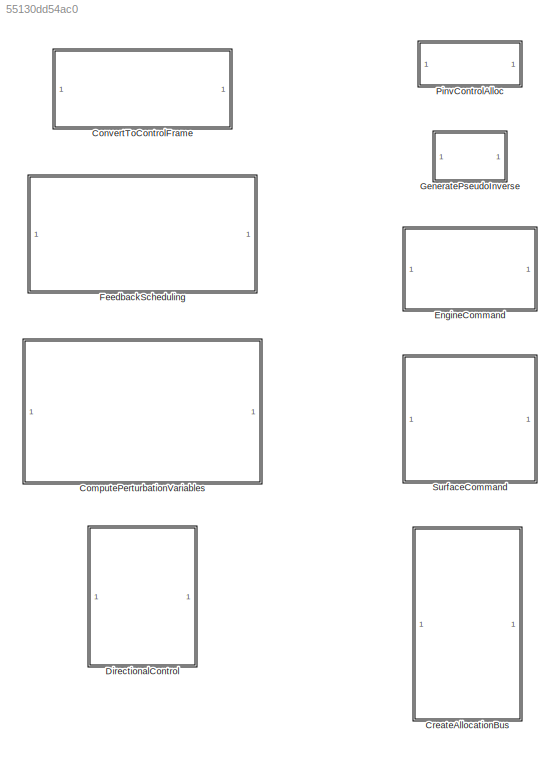
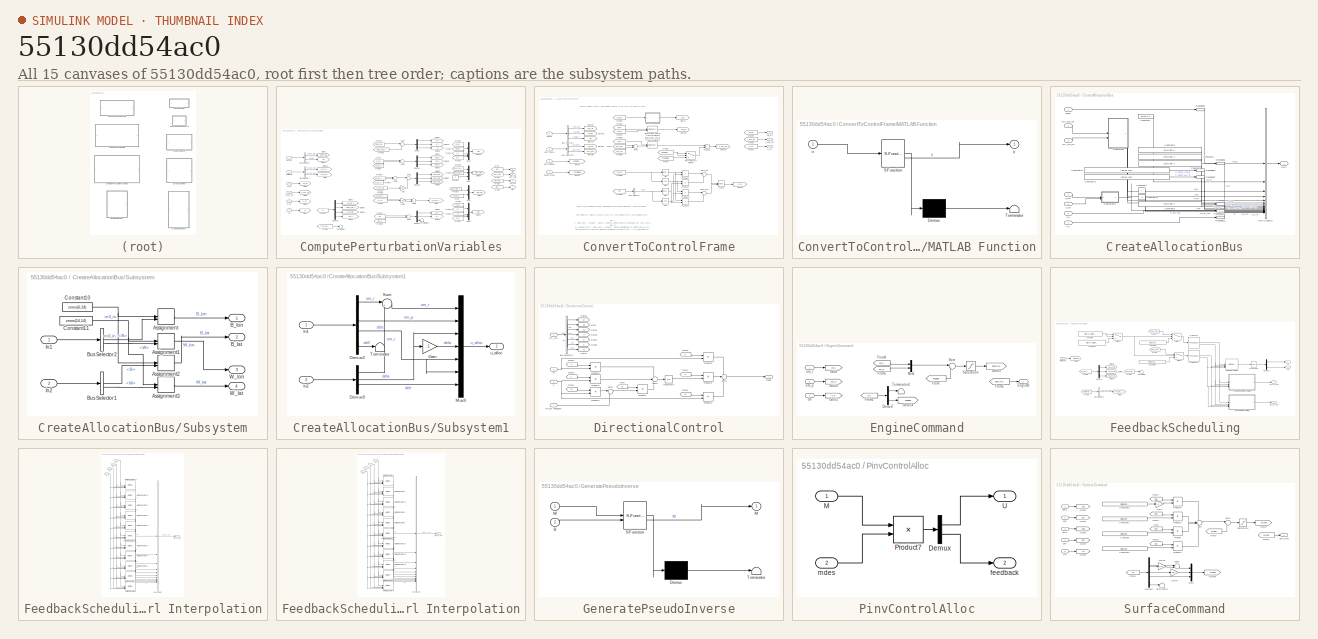
[diagram: thumbnail index - all 15 canvases of the model, root first then tree order]
MODEL slx_55130dd54ac0
KIND library
CONFIG AbsTol = auto
CONFIG EnableMultiTasking = off
CONFIG FixedStep = auto
CONFIG MaxStep = auto
CONFIG MinStep = auto
CONFIG RelTol = 1e-3
CONFIG SampleTimeConstraint = Unconstrained
CONFIG SolverName = VariableStepAuto
CONFIG StartTime = 0.0
CONFIG StopTime = 10.0
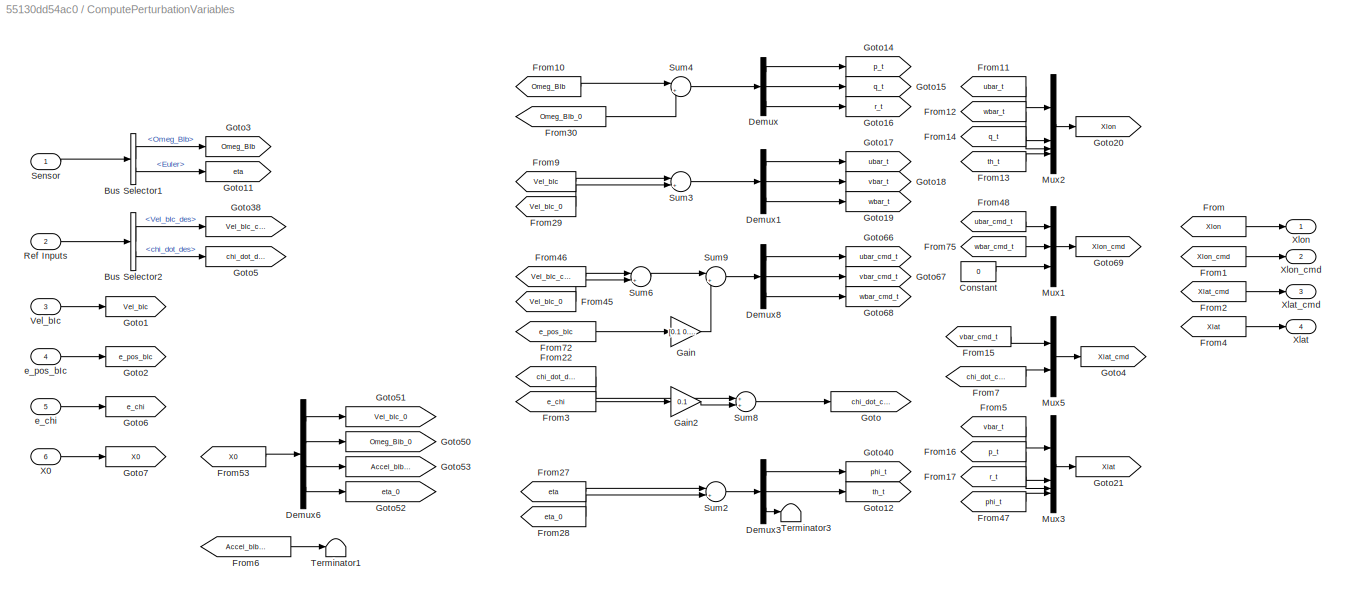
BLOCK [SubSystem] ComputePerturbationVariables
BLOCK [BusSelector] ComputePerturbationVariables/Bus Selector1
  OutputSignals = Omeg_BIb,Euler
BLOCK [BusSelector] ComputePerturbationVariables/Bus Selector2
  OutputSignals = Vel_bIc_des,chi_dot_des
BLOCK [Constant] ComputePerturbationVariables/Constant
  Value = 0
BLOCK [Demux] ComputePerturbationVariables/Demux
  Outputs = 3
BLOCK [Demux] ComputePerturbationVariables/Demux1
  Outputs = 3
BLOCK [Demux] ComputePerturbationVariables/Demux3
  Outputs = 3
BLOCK [Demux] ComputePerturbationVariables/Demux6
  Outputs = [3 3 3 3]
BLOCK [Demux] ComputePerturbationVariables/Demux8
  Outputs = 3
BLOCK [From] ComputePerturbationVariables/From
  GotoTag = Xlon
BLOCK [From] ComputePerturbationVariables/From1
  GotoTag = Xlon_cmd
BLOCK [From] ComputePerturbationVariables/From10
  GotoTag = Omeg_BIb
BLOCK [From] ComputePerturbationVariables/From11
  GotoTag = ubar_t
BLOCK [From] ComputePerturbationVariables/From12
  GotoTag = wbar_t
BLOCK [From] ComputePerturbationVariables/From13
  GotoTag = th_t
BLOCK [From] ComputePerturbationVariables/From14
  GotoTag = q_t
BLOCK [From] ComputePerturbationVariables/From15
  GotoTag = vbar_cmd_t
BLOCK [From] ComputePerturbationVariables/From16
  GotoTag = p_t
BLOCK [From] ComputePerturbationVariables/From17
  GotoTag = r_t
BLOCK [From] ComputePerturbationVariables/From2
  GotoTag = Xlat_cmd
BLOCK [From] ComputePerturbationVariables/From22
  GotoTag = chi_dot_des
BLOCK [From] ComputePerturbationVariables/From27
  GotoTag = eta
BLOCK [From] ComputePerturbationVariables/From28
  GotoTag = eta_0
BLOCK [From] ComputePerturbationVariables/From29
  GotoTag = Vel_bIc_0
BLOCK [From] ComputePerturbationVariables/From3
  GotoTag = e_chi
BLOCK [From] ComputePerturbationVariables/From30
  GotoTag = Omeg_BIb_0
BLOCK [From] ComputePerturbationVariables/From4
  GotoTag = Xlat
BLOCK [From] ComputePerturbationVariables/From45
  GotoTag = Vel_bIc_0
BLOCK [From] ComputePerturbationVariables/From46
  GotoTag = Vel_bIc_cmd
BLOCK [From] ComputePerturbationVariables/From47
  GotoTag = phi_t
BLOCK [From] ComputePerturbationVariables/From48
  GotoTag = ubar_cmd_t
BLOCK [From] ComputePerturbationVariables/From5
  GotoTag = vbar_t
BLOCK [From] ComputePerturbationVariables/From53
  GotoTag = X0
BLOCK [From] ComputePerturbationVariables/From6
  GotoTag = Accel_bIb_0
BLOCK [From] ComputePerturbationVariables/From7
  GotoTag = chi_dot_cmd
BLOCK [From] ComputePerturbationVariables/From72
  GotoTag = e_pos_bIc
BLOCK [From] ComputePerturbationVariables/From75
  GotoTag = wbar_cmd_t
BLOCK [From] ComputePerturbationVariables/From9
  GotoTag = Vel_bIc
BLOCK [Gain] ComputePerturbationVariables/Gain
  Gain = [0.1 0.1 0.1]'
BLOCK [Gain] ComputePerturbationVariables/Gain2
  Gain = 0.1
BLOCK [Goto] ComputePerturbationVariables/Goto
  GotoTag = chi_dot_cmd
BLOCK [Goto] ComputePerturbationVariables/Goto1
  GotoTag = Vel_bIc
BLOCK [Goto] ComputePerturbationVariables/Goto11
  GotoTag = eta
BLOCK [Goto] ComputePerturbationVariables/Goto12
  GotoTag = th_t
BLOCK [Goto] ComputePerturbationVariables/Goto14
  GotoTag = p_t
BLOCK [Goto] ComputePerturbationVariables/Goto15
  GotoTag = q_t
BLOCK [Goto] ComputePerturbationVariables/Goto16
  GotoTag = r_t
BLOCK [Goto] ComputePerturbationVariables/Goto17
  GotoTag = ubar_t
BLOCK [Goto] ComputePerturbationVariables/Goto18
  GotoTag = vbar_t
BLOCK [Goto] ComputePerturbationVariables/Goto19
  GotoTag = wbar_t
BLOCK [Goto] ComputePerturbationVariables/Goto2
  GotoTag = e_pos_bIc
BLOCK [Goto] ComputePerturbationVariables/Goto20
  GotoTag = Xlon
BLOCK [Goto] ComputePerturbationVariables/Goto21
  GotoTag = Xlat
BLOCK [Goto] ComputePerturbationVariables/Goto3
  GotoTag = Omeg_BIb
BLOCK [Goto] ComputePerturbationVariables/Goto38
  GotoTag = Vel_bIc_cmd
BLOCK [Goto] ComputePerturbationVariables/Goto4
  GotoTag = Xlat_cmd
BLOCK [Goto] ComputePerturbationVariables/Goto40
  GotoTag = phi_t
BLOCK [Goto] ComputePerturbationVariables/Goto5
  GotoTag = chi_dot_des
BLOCK [Goto] ComputePerturbationVariables/Goto50
  GotoTag = Omeg_BIb_0
BLOCK [Goto] ComputePerturbationVariables/Goto51
  GotoTag = Vel_bIc_0
BLOCK [Goto] ComputePerturbationVariables/Goto52
  GotoTag = eta_0
BLOCK [Goto] ComputePerturbationVariables/Goto53
  GotoTag = Accel_bIb_0
BLOCK [Goto] ComputePerturbationVariables/Goto6
  GotoTag = e_chi
BLOCK [Goto] ComputePerturbationVariables/Goto66
  GotoTag = ubar_cmd_t
BLOCK [Goto] ComputePerturbationVariables/Goto67
  GotoTag = vbar_cmd_t
BLOCK [Goto] ComputePerturbationVariables/Goto68
  GotoTag = wbar_cmd_t
BLOCK [Goto] ComputePerturbationVariables/Goto69
  GotoTag = Xlon_cmd
BLOCK [Goto] ComputePerturbationVariables/Goto7
  GotoTag = X0
BLOCK [Mux] ComputePerturbationVariables/Mux1
  DisplayOption = bar
  Inputs = 3
BLOCK [Mux] ComputePerturbationVariables/Mux2
  DisplayOption = bar
BLOCK [Mux] ComputePerturbationVariables/Mux3
  DisplayOption = bar
BLOCK [Mux] ComputePerturbationVariables/Mux5
  DisplayOption = bar
  Inputs = 2
BLOCK [Inport] ComputePerturbationVariables/Ref Inputs
  OutDataTypeStr = Bus: BUS_REF_INPUT
  Port = 2
BLOCK [Inport] ComputePerturbationVariables/Sensor
  OutDataTypeStr = Bus: SensorBus
BLOCK [Sum] ComputePerturbationVariables/Sum2
  Inputs = |+-
BLOCK [Sum] ComputePerturbationVariables/Sum3
  Inputs = |+-
BLOCK [Sum] ComputePerturbationVariables/Sum4
  Inputs = |+-
BLOCK [Sum] ComputePerturbationVariables/Sum6
  Inputs = |+-
BLOCK [Sum] ComputePerturbationVariables/Sum8
  Inputs = ++|
BLOCK [Sum] ComputePerturbationVariables/Sum9
  Inputs = |++
BLOCK [Terminator] ComputePerturbationVariables/Terminator1
BLOCK [Terminator] ComputePerturbationVariables/Terminator3
BLOCK [Inport] ComputePerturbationVariables/Vel_bIc
  Port = 3
BLOCK [Inport] ComputePerturbationVariables/X0
  Port = 6
BLOCK [Outport] ComputePerturbationVariables/Xlat
  Port = 4
BLOCK [Outport] ComputePerturbationVariables/Xlat_cmd
  Port = 3
BLOCK [Outport] ComputePerturbationVariables/Xlon
BLOCK [Outport] ComputePerturbationVariables/Xlon_cmd
  Port = 2
BLOCK [Inport] ComputePerturbationVariables/e_chi
  Port = 5
BLOCK [Inport] ComputePerturbationVariables/e_pos_bIc
  Port = 4
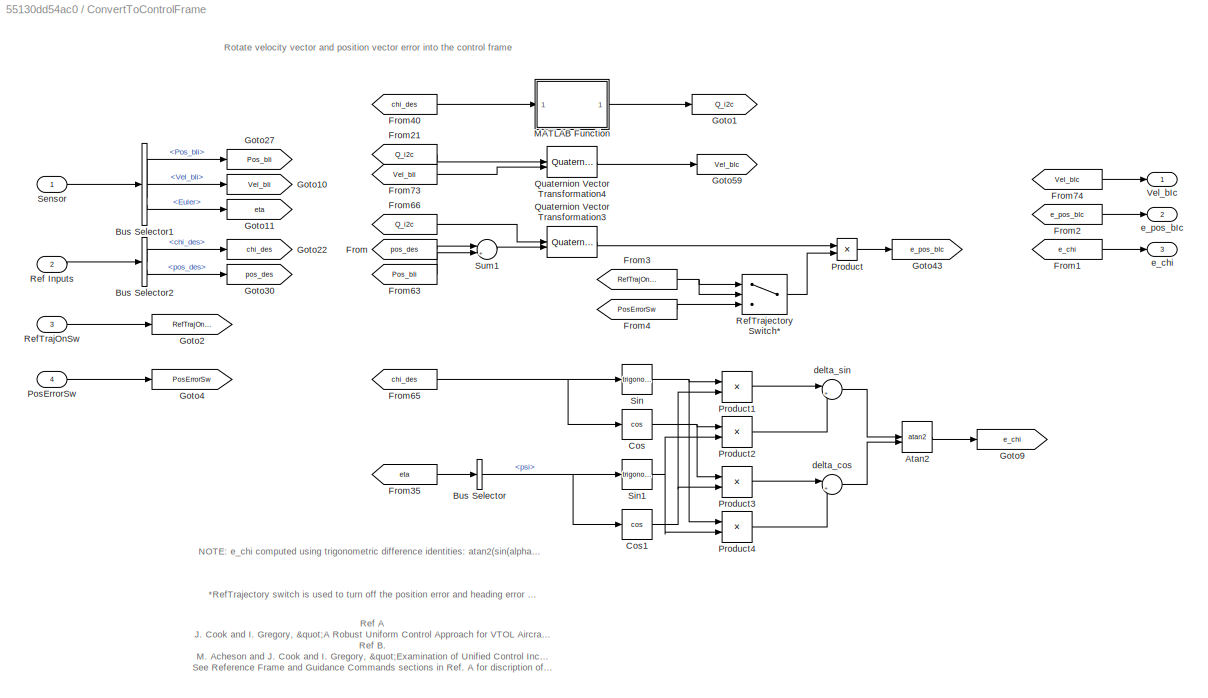
BLOCK [SubSystem] ConvertToControlFrame
BLOCK [Trigonometry] ConvertToControlFrame/Atan2
  Operator = atan2
BLOCK [BusSelector] ConvertToControlFrame/Bus Selector
  OutputSignals = psi
BLOCK [BusSelector] ConvertToControlFrame/Bus Selector1
  OutputSignals = Pos_bIi,Vel_bIi,Euler
BLOCK [BusSelector] ConvertToControlFrame/Bus Selector2
  OutputSignals = chi_des,pos_des
BLOCK [Trigonometry] ConvertToControlFrame/Cos
  Operator = cos
BLOCK [Trigonometry] ConvertToControlFrame/Cos1
  Operator = cos
BLOCK [From] ConvertToControlFrame/From
  GotoTag = pos_des
BLOCK [From] ConvertToControlFrame/From1
  GotoTag = e_chi
BLOCK [From] ConvertToControlFrame/From2
  GotoTag = e_pos_bIc
BLOCK [From] ConvertToControlFrame/From21
  GotoTag = Q_i2c
BLOCK [From] ConvertToControlFrame/From3
  GotoTag = RefTrajOnSw
BLOCK [From] ConvertToControlFrame/From35
  GotoTag = eta
BLOCK [From] ConvertToControlFrame/From4
  GotoTag = PosErrorSw
BLOCK [From] ConvertToControlFrame/From40
  GotoTag = chi_des
BLOCK [From] ConvertToControlFrame/From63
  GotoTag = Pos_bIi
BLOCK [From] ConvertToControlFrame/From65
  GotoTag = chi_des
BLOCK [From] ConvertToControlFrame/From66
  GotoTag = Q_i2c
BLOCK [From] ConvertToControlFrame/From73
  GotoTag = Vel_bIi
BLOCK [From] ConvertToControlFrame/From74
  GotoTag = Vel_bIc
BLOCK [Goto] ConvertToControlFrame/Goto1
  GotoTag = Q_i2c
BLOCK [Goto] ConvertToControlFrame/Goto10
  GotoTag = Vel_bIi
BLOCK [Goto] ConvertToControlFrame/Goto11
  GotoTag = eta
BLOCK [Goto] ConvertToControlFrame/Goto2
  GotoTag = RefTrajOnSw
BLOCK [Goto] ConvertToControlFrame/Goto22
  GotoTag = chi_des
BLOCK [Goto] ConvertToControlFrame/Goto27
  GotoTag = Pos_bIi
BLOCK [Goto] ConvertToControlFrame/Goto30
  GotoTag = pos_des
BLOCK [Goto] ConvertToControlFrame/Goto4
  GotoTag = PosErrorSw
BLOCK [Goto] ConvertToControlFrame/Goto43
  GotoTag = e_pos_bIc
BLOCK [Goto] ConvertToControlFrame/Goto59
  GotoTag = Vel_bIc
BLOCK [Goto] ConvertToControlFrame/Goto9
  GotoTag = e_chi
BLOCK [SubSystem] ConvertToControlFrame/MATLAB Function
  ErrorFcn = Stateflow.Translate.translate
  PermitHierarchicalResolution = ExplicitOnly
  SFBlockType = MATLAB Function
  TreatAsAtomicUnit = on
BLOCK [Demux] ConvertToControlFrame/MATLAB Function/ Demux 
  Outputs = 1
BLOCK [S-Function] ConvertToControlFrame/MATLAB Function/ SFunction 
  EnableBusSupport = off
  FunctionName = sf_sfun
  PortCounts = [1 2]
  SFcnIsStateOwnerBlock = off
  SFunctionDeploymentMode = off
  Tag = Stateflow S-Function 10
BLOCK [Terminator] ConvertToControlFrame/MATLAB Function/ Terminator 
BLOCK [Inport] ConvertToControlFrame/MATLAB Function/u
BLOCK [Outport] ConvertToControlFrame/MATLAB Function/y
BLOCK [Inport] ConvertToControlFrame/PosErrorSw
  Port = 4
BLOCK [Product] ConvertToControlFrame/Product
BLOCK [Product] ConvertToControlFrame/Product1
BLOCK [Product] ConvertToControlFrame/Product2
BLOCK [Product] ConvertToControlFrame/Product3
BLOCK [Product] ConvertToControlFrame/Product4
BLOCK [Reference] ConvertToControlFrame/Quaternion Vector Transformation3  REF=libAxisTransformations/Quaternion Vector Transformation
  SourceBlock = libAxisTransformations/Quaternion Vector Transformation
  SourceType = Quaterion Transformation of Vector (1-D)
BLOCK [Reference] ConvertToControlFrame/Quaternion Vector Transformation4  REF=libAxisTransformations/Quaternion Vector Transformation
  SourceBlock = libAxisTransformations/Quaternion Vector Transformation
  SourceType = Quaterion Transformation of Vector (1-D)
BLOCK [Inport] ConvertToControlFrame/Ref Inputs
  OutDataTypeStr = Bus: BUS_REF_INPUT
  Port = 2
BLOCK [Inport] ConvertToControlFrame/RefTrajOnSw
  Port = 3
BLOCK [Switch] ConvertToControlFrame/RefTrajectory Switch*
  Criteria = u2 > Threshold
  InputSameDT = off
  SaturateOnIntegerOverflow = off
BLOCK [Inport] ConvertToControlFrame/Sensor
  OutDataTypeStr = Bus: SensorBus
BLOCK [Trigonometry] ConvertToControlFrame/Sin
BLOCK [Trigonometry] ConvertToControlFrame/Sin1
BLOCK [Sum] ConvertToControlFrame/Sum1
  Inputs = |+-
BLOCK [Outport] ConvertToControlFrame/Vel_bIc
BLOCK [Sum] ConvertToControlFrame/delta_cos
  Inputs = |++
BLOCK [Sum] ConvertToControlFrame/delta_sin
  Inputs = |+-
BLOCK [Outport] ConvertToControlFrame/e_chi
  Port = 3
BLOCK [Outport] ConvertToControlFrame/e_pos_bIc
  Port = 2
BLOCK [SubSystem] CreateAllocationBus
BLOCK [BusCreator] CreateAllocationBus/Bus Creator2
  DisplayOption = bar
  InheritFromInputs = on
  Inputs = 17
  OutDataTypeStr = Bus: BUS_ALLOC
BLOCK [Constant] CreateAllocationBus/Constant10
  Value = [SimPar.Engine.MaxPos;SimPar.Actuator.MaxPos]
BLOCK [Constant] CreateAllocationBus/Constant11
  Value = [SimPar.Engine.MinPos;SimPar.Actuator.MinPos]
BLOCK [Constant] CreateAllocationBus/Constant12
  Value = 0
BLOCK [Constant] CreateAllocationBus/Constant4
BLOCK [Constant] CreateAllocationBus/Constant5
  Value = zeros(SimIn.numSurfaces+SimIn.numEngines)
BLOCK [Constant] CreateAllocationBus/Constant6
  Value = zeros(SimIn.numSurfaces+SimIn.numEngines)
BLOCK [Constant] CreateAllocationBus/Constant7
  Value = zeros(6,1)
BLOCK [Constant] CreateAllocationBus/Constant8
  Value = zeros(SimIn.numSurfaces+SimIn.numEngines,1)
BLOCK [Constant] CreateAllocationBus/Constant9
  Value = zeros(SimIn.numSurfaces+SimIn.numEngines,1)
BLOCK [Outport] CreateAllocationBus/Out1
BLOCK [Reshape] CreateAllocationBus/Reshape10
BLOCK [Reshape] CreateAllocationBus/Reshape11
BLOCK [Reshape] CreateAllocationBus/Reshape5
BLOCK [Reshape] CreateAllocationBus/Reshape6
BLOCK [Reshape] CreateAllocationBus/Reshape7
BLOCK [Reshape] CreateAllocationBus/Reshape8
BLOCK [Reshape] CreateAllocationBus/Reshape9
BLOCK [SubSystem] CreateAllocationBus/Subsystem
BLOCK [Assignment] CreateAllocationBus/Subsystem/Assignment
  DiagnosticForDimensions = Warning
  IndexOptions = Index vector (dialog),Index vector (dialog)
  Indices = 1:3,1:12
  NumberOfDimensions = 2
  OutputSizes = 1,1
BLOCK [Assignment] CreateAllocationBus/Subsystem/Assignment1
  DiagnosticForDimensions = Warning
  IndexOptions = Index vector (dialog),Index vector (dialog)
  Indices = 1:12,1:12
  NumberOfDimensions = 2
  OutputSizes = 1,1
BLOCK [Assignment] CreateAllocationBus/Subsystem/Assignment2
  DiagnosticForDimensions = Warning
  IndexOptions = Index vector (dialog),Index vector (dialog)
  Indices = 1:3,1:11
  NumberOfDimensions = 2
  OutputSizes = 1,1
BLOCK [Assignment] CreateAllocationBus/Subsystem/Assignment3
  DiagnosticForDimensions = Warning
  IndexOptions = Index vector (dialog),Index vector (dialog)
  Indices = 1:11,1:11
  NumberOfDimensions = 2
  OutputSizes = 1,1
BLOCK [Outport] CreateAllocationBus/Subsystem/B_lat
  Port = 2
BLOCK [Outport] CreateAllocationBus/Subsystem/B_lon
BLOCK [BusSelector] CreateAllocationBus/Subsystem/Bus Selector1
  OutputSignals = B,W
BLOCK [BusSelector] CreateAllocationBus/Subsystem/Bus Selector2
  OutputSignals = B,W
BLOCK [Constant] CreateAllocationBus/Subsystem/Constant10
  Value = zeros(6,14)
BLOCK [Constant] CreateAllocationBus/Subsystem/Constant11
  Value = zeros(14,14)
BLOCK [Inport] CreateAllocationBus/Subsystem/In1
BLOCK [Inport] CreateAllocationBus/Subsystem/In2
  Port = 2
BLOCK [Outport] CreateAllocationBus/Subsystem/W_lat
  Port = 4
BLOCK [Outport] CreateAllocationBus/Subsystem/W_lon
  Port = 3
BLOCK [SubSystem] CreateAllocationBus/Subsystem1
BLOCK [Demux] CreateAllocationBus/Subsystem1/Demux2
  Outputs = [8 1 1 1]
BLOCK [Demux] CreateAllocationBus/Subsystem1/Demux9
  Outputs = [8 1 1]
BLOCK [Gain] CreateAllocationBus/Subsystem1/Gain
  Gain = -1
BLOCK [Inport] CreateAllocationBus/Subsystem1/In1
BLOCK [Inport] CreateAllocationBus/Subsystem1/In2
  Port = 2
BLOCK [Mux] CreateAllocationBus/Subsystem1/Mux9
  DisplayOption = bar
  Inputs = 7
BLOCK [Sum] CreateAllocationBus/Subsystem1/Sum
  Inputs = |++
BLOCK [Terminator] CreateAllocationBus/Subsystem1/Terminator
BLOCK [Outport] CreateAllocationBus/Subsystem1/u_alloc
BLOCK [Inport] CreateAllocationBus/U0
  Port = 6
BLOCK [Inport] CreateAllocationBus/X0
  Port = 7
BLOCK [Inport] CreateAllocationBus/ctrl_sys_lat
  Port = 3
BLOCK [Inport] CreateAllocationBus/ctrl_sys_lon
  Port = 2
BLOCK [Inport] CreateAllocationBus/mdes
BLOCK [Inport] CreateAllocationBus/u_lat
  Port = 5
BLOCK [Inport] CreateAllocationBus/u_lon
  Port = 4
BLOCK [SubSystem] DirectionalControl
BLOCK [BusSelector] DirectionalControl/Bus Selector1
  OutputSignals = Ki,Kx,Kv,F,G,C,Cv
BLOCK [From] DirectionalControl/From
  GotoTag = Kv
BLOCK [From] DirectionalControl/From1
  GotoTag = Ki
BLOCK [From] DirectionalControl/From2
  GotoTag = C
BLOCK [From] DirectionalControl/From3
  GotoTag = Cv
BLOCK [From] DirectionalControl/From4
  GotoTag = F
BLOCK [From] DirectionalControl/From5
  GotoTag = Kx
BLOCK [From] DirectionalControl/From8
  GotoTag = G
BLOCK [Goto] DirectionalControl/Goto
  GotoTag = Kx
BLOCK [Goto] DirectionalControl/Goto1
  GotoTag = G
BLOCK [Goto] DirectionalControl/Goto2
  GotoTag = F
  NameLocation = top
BLOCK [Goto] DirectionalControl/Goto3
  GotoTag = Ki
BLOCK [Goto] DirectionalControl/Goto4
  GotoTag = Kv
BLOCK [Goto] DirectionalControl/Goto5
  GotoTag = C
BLOCK [Goto] DirectionalControl/Goto7
  GotoTag = Cv
BLOCK [Integrator] DirectionalControl/Integrator2
  LowerSaturationLimit = [-10 -10 -1]
  UpperSaturationLimit = [10 10 1]
BLOCK [Product] DirectionalControl/Product1
  Multiplication = Matrix(*)
BLOCK [Product] DirectionalControl/Product2
  Multiplication = Matrix(*)
BLOCK [Product] DirectionalControl/Product3
  Multiplication = Matrix(*)
BLOCK [Product] DirectionalControl/Product4
  Multiplication = Matrix(*)
BLOCK [Product] DirectionalControl/Product5
  Multiplication = Matrix(*)
BLOCK [Product] DirectionalControl/Product6
  Multiplication = Matrix(*)
BLOCK [Product] DirectionalControl/Product8
  Multiplication = Matrix(*)
BLOCK [Inport] DirectionalControl/R
  Port = 2
BLOCK [Sum] DirectionalControl/Sum1
  Inputs = ++-
BLOCK [Sum] DirectionalControl/Sum2
  Inputs = |-+
BLOCK [Sum] DirectionalControl/Sum5
  Inputs = +-+
BLOCK [Inport] DirectionalControl/Virtual Feedback
  Port = 4
BLOCK [Inport] DirectionalControl/X
  Port = 3
BLOCK [Inport] DirectionalControl/ctrl_sys
BLOCK [Outport] DirectionalControl/mdes
BLOCK [SubSystem] EngineCommand
BLOCK [Demux] EngineCommand/Demux7
  Outputs = [-1 9]
BLOCK [Outport] EngineCommand/EngCmd
BLOCK [From] EngineCommand/From
  GotoTag = EngBias
BLOCK [From] EngineCommand/From1
  GotoTag = EngCmd
BLOCK [From] EngineCommand/From2
  GotoTag = U0
BLOCK [From] EngineCommand/From4
  GotoTag = om_r
BLOCK [From] EngineCommand/From5
  GotoTag = om_p
BLOCK [Goto] EngineCommand/Goto
  GotoTag = om_r
BLOCK [Goto] EngineCommand/Goto1
  GotoTag = U0
BLOCK [Goto] EngineCommand/Goto2
  GotoTag = om_p
BLOCK [Goto] EngineCommand/Goto3
  GotoTag = EngCmd
BLOCK [Goto] EngineCommand/Goto54
  GotoTag = EngBias
BLOCK [Mux] EngineCommand/Mux1
  DisplayOption = bar
  Inputs = 2
BLOCK [Saturate] EngineCommand/Saturation
  LowerLimit = SimPar.Engine.MinPos
  UpperLimit = SimPar.Engine.MaxPos
BLOCK [Sum] EngineCommand/Sum
  Inputs = |++
BLOCK [Terminator] EngineCommand/Terminator4
BLOCK [Inport] EngineCommand/U0
  Port = 3
BLOCK [Inport] EngineCommand/om_p
  Port = 2
BLOCK [Inport] EngineCommand/om_r
BLOCK [SubSystem] FeedbackScheduling
BLOCK [BusSelector] FeedbackScheduling/Bus Selector2
  OutputSignals = Vel_bIc_des
BLOCK [Constant] FeedbackScheduling/Constant
  Value = SimIn.Switches.RefTrajOn
BLOCK [Constant] FeedbackScheduling/Constant1
  Value = SimIn.Control.IC.Vel_bIc_0(1)
BLOCK [Constant] FeedbackScheduling/Constant2
  Value = SimIn.Control.IC.Vel_bIc_0(3)
BLOCK [Constant] FeedbackScheduling/Constant3
  Value = SimIn.Switches.FeedbackCurrent
BLOCK [Demux] FeedbackScheduling/Demux4
  Outputs = 3
BLOCK [Demux] FeedbackScheduling/Demux5
  Outputs = [12 13]
BLOCK [From] FeedbackScheduling/From
  GotoTag = ubar_cmd
BLOCK [From] FeedbackScheduling/From1
  GotoTag = wbar_cmd
BLOCK [From] FeedbackScheduling/From2
  GotoTag = RefInputs
BLOCK [From] FeedbackScheduling/From3
  GotoTag = Vel_bIc_cmd
BLOCK [From] FeedbackScheduling/From4
  GotoTag = vbar_cmd
BLOCK [Goto] FeedbackScheduling/Goto
  GotoTag = RefInputs
BLOCK [Goto] FeedbackScheduling/Goto1
  GotoTag = Vel_bIc_cmd
BLOCK [Goto] FeedbackScheduling/Goto60
  GotoTag = ubar_cmd
BLOCK [Goto] FeedbackScheduling/Goto61
  GotoTag = vbar_cmd
BLOCK [Goto] FeedbackScheduling/Goto62
  GotoTag = wbar_cmd
BLOCK [SubSystem] FeedbackScheduling/Lateral Ctrl Interpolation
BLOCK [BusCreator] FeedbackScheduling/Lateral Ctrl Interpolation/Bus Creator2
  DisplayOption = bar
  InheritFromInputs = on
  Inputs = 11
BLOCK [Reference] FeedbackScheduling/Lateral Ctrl Interpolation/Matrix Interpolation17  REF=simulink_extras/Additional
Lookup Tables/Matrix Interpolation
  SourceBlock = simulink_extras/Additional\nLookup Tables/Matrix Interpolation
  SourceType = MatrixInterpolation
BLOCK [Reference] FeedbackScheduling/Lateral Ctrl Interpolation/Matrix Interpolation18  REF=simulink_extras/Additional
Lookup Tables/Matrix Interpolation
  SourceBlock = simulink_extras/Additional\nLookup Tables/Matrix Interpolation
  SourceType = MatrixInterpolation
BLOCK [Reference] FeedbackScheduling/Lateral Ctrl Interpolation/Matrix Interpolation19  REF=simulink_extras/Additional
Lookup Tables/Matrix Interpolation
  SourceBlock = simulink_extras/Additional\nLookup Tables/Matrix Interpolation
  SourceType = MatrixInterpolation
BLOCK [Reference] FeedbackScheduling/Lateral Ctrl Interpolation/Matrix Interpolation20  REF=simulink_extras/Additional
Lookup Tables/Matrix Interpolation
  SourceBlock = simulink_extras/Additional\nLookup Tables/Matrix Interpolation
  SourceType = MatrixInterpolation
BLOCK [Reference] FeedbackScheduling/Lateral Ctrl Interpolation/Matrix Interpolation21  REF=simulink_extras/Additional
Lookup Tables/Matrix Interpolation
  SourceBlock = simulink_extras/Additional\nLookup Tables/Matrix Interpolation
  SourceType = MatrixInterpolation
BLOCK [Reference] FeedbackScheduling/Lateral Ctrl Interpolation/Matrix Interpolation22  REF=simulink_extras/Additional
Lookup Tables/Matrix Interpolation
  SourceBlock = simulink_extras/Additional\nLookup Tables/Matrix Interpolation
  SourceType = MatrixInterpolation
BLOCK [Reference] FeedbackScheduling/Lateral Ctrl Interpolation/Matrix Interpolation23  REF=simulink_extras/Additional
Lookup Tables/Matrix Interpolation
  SourceBlock = simulink_extras/Additional\nLookup Tables/Matrix Interpolation
  SourceType = MatrixInterpolation
BLOCK [Reference] FeedbackScheduling/Lateral Ctrl Interpolation/Matrix Interpolation24  REF=simulink_extras/Additional
Lookup Tables/Matrix Interpolation
  SourceBlock = simulink_extras/Additional\nLookup Tables/Matrix Interpolation
  SourceType = MatrixInterpolation
BLOCK [Reference] FeedbackScheduling/Lateral Ctrl Interpolation/Matrix Interpolation25  REF=simulink_extras/Additional
Lookup Tables/Matrix Interpolation
  SourceBlock = simulink_extras/Additional\nLookup Tables/Matrix Interpolation
  SourceType = MatrixInterpolation
BLOCK [Reference] FeedbackScheduling/Lateral Ctrl Interpolation/Matrix Interpolation7  REF=simulink_extras/Additional
Lookup Tables/Matrix Interpolation
  SourceBlock = simulink_extras/Additional\nLookup Tables/Matrix Interpolation
  SourceType = MatrixInterpolation
BLOCK [Reference] FeedbackScheduling/Lateral Ctrl Interpolation/Matrix Interpolation9  REF=simulink_extras/Additional
Lookup Tables/Matrix Interpolation
  SourceBlock = simulink_extras/Additional\nLookup Tables/Matrix Interpolation
  SourceType = MatrixInterpolation
BLOCK [Outport] FeedbackScheduling/Lateral Ctrl Interpolation/ctrl_sys_lat
BLOCK [Inport] FeedbackScheduling/Lateral Ctrl Interpolation/f1
  Port = 2
BLOCK [Inport] FeedbackScheduling/Lateral Ctrl Interpolation/f2
  Port = 4
BLOCK [Inport] FeedbackScheduling/Lateral Ctrl Interpolation/k1
BLOCK [Inport] FeedbackScheduling/Lateral Ctrl Interpolation/k2
  Port = 3
BLOCK [SubSystem] FeedbackScheduling/Longitudinal Ctrl Interpolation
BLOCK [BusCreator] FeedbackScheduling/Longitudinal Ctrl Interpolation/Bus Creator
  DisplayOption = bar
  InheritFromInputs = on
  Inputs = 11
BLOCK [Reference] FeedbackScheduling/Longitudinal Ctrl Interpolation/Matrix Interpolation12  REF=simulink_extras/Additional
Lookup Tables/Matrix Interpolation
  SourceBlock = simulink_extras/Additional\nLookup Tables/Matrix Interpolation
  SourceType = MatrixInterpolation
BLOCK [Reference] FeedbackScheduling/Longitudinal Ctrl Interpolation/Matrix Interpolation13  REF=simulink_extras/Additional
Lookup Tables/Matrix Interpolation
  SourceBlock = simulink_extras/Additional\nLookup Tables/Matrix Interpolation
  SourceType = MatrixInterpolation
BLOCK [Reference] FeedbackScheduling/Longitudinal Ctrl Interpolation/Matrix Interpolation14  REF=simulink_extras/Additional
Lookup Tables/Matrix Interpolation
  SourceBlock = simulink_extras/Additional\nLookup Tables/Matrix Interpolation
  SourceType = MatrixInterpolation
BLOCK [Reference] FeedbackScheduling/Longitudinal Ctrl Interpolation/Matrix Interpolation15  REF=simulink_extras/Additional
Lookup Tables/Matrix Interpolation
  SourceBlock = simulink_extras/Additional\nLookup Tables/Matrix Interpolation
  SourceType = MatrixInterpolation
BLOCK [Reference] FeedbackScheduling/Longitudinal Ctrl Interpolation/Matrix Interpolation16  REF=simulink_extras/Additional
Lookup Tables/Matrix Interpolation
  SourceBlock = simulink_extras/Additional\nLookup Tables/Matrix Interpolation
  SourceType = MatrixInterpolation
BLOCK [Reference] FeedbackScheduling/Longitudinal Ctrl Interpolation/Matrix Interpolation2  REF=simulink_extras/Additional
Lookup Tables/Matrix Interpolation
  SourceBlock = simulink_extras/Additional\nLookup Tables/Matrix Interpolation
  SourceType = MatrixInterpolation
BLOCK [Reference] FeedbackScheduling/Longitudinal Ctrl Interpolation/Matrix Interpolation3  REF=simulink_extras/Additional
Lookup Tables/Matrix Interpolation
  SourceBlock = simulink_extras/Additional\nLookup Tables/Matrix Interpolation
  SourceType = MatrixInterpolation
BLOCK [Reference] FeedbackScheduling/Longitudinal Ctrl Interpolation/Matrix Interpolation4  REF=simulink_extras/Additional
Lookup Tables/Matrix Interpolation
  SourceBlock = simulink_extras/Additional\nLookup Tables/Matrix Interpolation
  SourceType = MatrixInterpolation
BLOCK [Reference] FeedbackScheduling/Longitudinal Ctrl Interpolation/Matrix Interpolation5  REF=simulink_extras/Additional
Lookup Tables/Matrix Interpolation
  SourceBlock = simulink_extras/Additional\nLookup Tables/Matrix Interpolation
  SourceType = MatrixInterpolation
BLOCK [Reference] FeedbackScheduling/Longitudinal Ctrl Interpolation/Matrix Interpolation6  REF=simulink_extras/Additional
Lookup Tables/Matrix Interpolation
  SourceBlock = simulink_extras/Additional\nLookup Tables/Matrix Interpolation
  SourceType = MatrixInterpolation
BLOCK [Reference] FeedbackScheduling/Longitudinal Ctrl Interpolation/Matrix Interpolation8  REF=simulink_extras/Additional
Lookup Tables/Matrix Interpolation
  SourceBlock = simulink_extras/Additional\nLookup Tables/Matrix Interpolation
  SourceType = MatrixInterpolation
BLOCK [Outport] FeedbackScheduling/Longitudinal Ctrl Interpolation/ctrl_sys_lon
BLOCK [Inport] FeedbackScheduling/Longitudinal Ctrl Interpolation/f1
  Port = 2
BLOCK [Inport] FeedbackScheduling/Longitudinal Ctrl Interpolation/f2
  Port = 4
BLOCK [Inport] FeedbackScheduling/Longitudinal Ctrl Interpolation/k1
BLOCK [Inport] FeedbackScheduling/Longitudinal Ctrl Interpolation/k2
  Port = 3
BLOCK [Reference] FeedbackScheduling/Matrix Interpolation1  REF=simulink_extras/Additional
Lookup Tables/Matrix Interpolation
  SourceBlock = simulink_extras/Additional\nLookup Tables/Matrix Interpolation
  SourceType = MatrixInterpolation
BLOCK [PreLookup] FeedbackScheduling/Prelookup
  BreakpointsData = SimIn.Control.trim.UH
  InputPortMap = u0
BLOCK [PreLookup] FeedbackScheduling/Prelookup1
  BreakpointsData = SimIn.Control.trim.WH
  InputPortMap = u0
BLOCK [Inport] FeedbackScheduling/RefInputs
  OutDataTypeStr = Bus: BUS_REF_INPUT
BLOCK [Switch] FeedbackScheduling/Switch
  Criteria = u2 ~= 0
  InputSameDT = off
  SaturateOnIntegerOverflow = off
BLOCK [Switch] FeedbackScheduling/Switch1
  Criteria = u2 ~= 0
  InputSameDT = off
  SaturateOnIntegerOverflow = off
BLOCK [Switch] FeedbackScheduling/Switch2
  Criteria = u2 > Threshold
  InputSameDT = off
  SaturateOnIntegerOverflow = off
BLOCK [Terminator] FeedbackScheduling/Terminator
BLOCK [Math] FeedbackScheduling/Transpose
  Operator = transpose
BLOCK [Outport] FeedbackScheduling/U0
  Port = 2
BLOCK [Outport] FeedbackScheduling/X0
BLOCK [Outport] FeedbackScheduling/ctrl_sys_lat
  Port = 4
BLOCK [Outport] FeedbackScheduling/ctrl_sys_lon
  Port = 3
BLOCK [SubSystem] GeneratePseudoInverse
  ErrorFcn = Stateflow.Translate.translate
  PermitHierarchicalResolution = ExplicitOnly
  SFBlockType = MATLAB Function
  TreatAsAtomicUnit = on
BLOCK [Demux] GeneratePseudoInverse/ Demux 
  Outputs = 1
BLOCK [S-Function] GeneratePseudoInverse/ SFunction 
  EnableBusSupport = off
  FunctionName = sf_sfun
  PortCounts = [2 2]
  SFcnIsStateOwnerBlock = off
  SFunctionDeploymentMode = off
  Tag = Stateflow S-Function 2
BLOCK [Terminator] GeneratePseudoInverse/ Terminator 
BLOCK [Inport] GeneratePseudoInverse/B
  Port = 2
BLOCK [Outport] GeneratePseudoInverse/M
BLOCK [Inport] GeneratePseudoInverse/W
BLOCK [SubSystem] PinvControlAlloc
BLOCK [Demux] PinvControlAlloc/Demux
  Outputs = [-1 1]
BLOCK [Inport] PinvControlAlloc/M
BLOCK [Product] PinvControlAlloc/Product7
  Multiplication = Matrix(*)
BLOCK [Outport] PinvControlAlloc/U
BLOCK [Outport] PinvControlAlloc/feedback
  Port = 2
BLOCK [Inport] PinvControlAlloc/mdes
  Port = 2
BLOCK [SubSystem] SurfaceCommand
BLOCK [Constant] SurfaceCommand/Constant
  Value = SimIn.Control.surface_alloc.alloc_elev
BLOCK [Constant] SurfaceCommand/Constant1
  Value = SimIn.Control.surface_alloc.alloc_ail
BLOCK [Constant] SurfaceCommand/Constant2
  Value = SimIn.Control.surface_alloc.alloc_rud
BLOCK [Constant] SurfaceCommand/Constant3
  Value = SimIn.Control.surface_alloc.alloc_flap
BLOCK [Demux] SurfaceCommand/Demux7
  Outputs = [1 1 1 1 -1]
BLOCK [From] SurfaceCommand/From
  GotoTag = dele
BLOCK [From] SurfaceCommand/From1
  GotoTag = dela
BLOCK [From] SurfaceCommand/From2
  GotoTag = delr
BLOCK [From] SurfaceCommand/From3
  GotoTag = SurfCmd
BLOCK [From] SurfaceCommand/From4
  GotoTag = delf
BLOCK [From] SurfaceCommand/From5
  GotoTag = SurfBias
BLOCK [From] SurfaceCommand/From6
  GotoTag = U0
BLOCK [Gain] SurfaceCommand/Gain
BLOCK [Gain] SurfaceCommand/Gain3
  Gain = [-1; 1]
BLOCK [Gain] SurfaceCommand/Gain4
  Gain = [1; 1]
BLOCK [Goto] SurfaceCommand/Goto1
  GotoTag = delf
BLOCK [Goto] SurfaceCommand/Goto2
  GotoTag = SurfCmd
BLOCK [Goto] SurfaceCommand/Goto3
  GotoTag = dele
BLOCK [Goto] SurfaceCommand/Goto4
  GotoTag = U0
BLOCK [Goto] SurfaceCommand/Goto55
  GotoTag = SurfBias
BLOCK [Goto] SurfaceCommand/Goto6
  GotoTag = dela
BLOCK [Goto] SurfaceCommand/Goto7
  GotoTag = delr
BLOCK [Mux] SurfaceCommand/Mux4
  DisplayOption = bar
  Inputs = 3
BLOCK [Product] SurfaceCommand/Product
BLOCK [Product] SurfaceCommand/Product1
BLOCK [Product] SurfaceCommand/Product2
BLOCK [Product] SurfaceCommand/Product3
BLOCK [Saturate] SurfaceCommand/Saturation1
  LowerLimit = SimPar.Actuator.MinPos
  UpperLimit = SimPar.Actuator.MaxPos
BLOCK [Sum] SurfaceCommand/Sum
  Inputs = ++++
BLOCK [Sum] SurfaceCommand/Sum1
  Inputs = |++
BLOCK [Sum] SurfaceCommand/Sum5
  Inputs = ++|
BLOCK [Outport] SurfaceCommand/SurfCmd
BLOCK [Terminator] SurfaceCommand/Terminator2
BLOCK [Inport] SurfaceCommand/U0
  Port = 5
BLOCK [Inport] SurfaceCommand/dela
BLOCK [Inport] SurfaceCommand/dele
  Port = 3
BLOCK [Inport] SurfaceCommand/delf
  Port = 2
BLOCK [Inport] SurfaceCommand/delr
  Port = 4
ANNOTATION ConvertToControlFrame: *RefTrajectory switch is used to turn off the position error and heading error when not tracking a reference trajectory
ANNOTATION ConvertToControlFrame: Ref A J. Cook and I. Gregory, "A Robust Uniform Control Approach for VTOL Aircraft", VFS Autonomous VTOL Technical Meeting and Electric VTOL Symposium, January 26–28, 2021 Ref B. M. Acheson and J. Cook and I. Gregory, "Examination of Unified Control Incorporating Generlized Control Allocation", AIAA SciTech 2021 Forum See Reference Frame and Guidance Commands sections in Ref. A for discription of ...<+72ch>
ANNOTATION ConvertToControlFrame: NOTE: e_chi computed using trigonometric difference identities: atan2(sin(alpha-beta),cos(alpha-beta)), which prevents angle wrap issue
ANNOTATION ConvertToControlFrame: Rotate velocity vector and position vector error into the control frame
LINE ComputePerturbationVariables/Bus Selector1:1 -> ComputePerturbationVariables/Goto3:1
LINE ComputePerturbationVariables/Bus Selector1:2 -> ComputePerturbationVariables/Goto11:1
LINE ComputePerturbationVariables/Bus Selector2:1 -> ComputePerturbationVariables/Goto38:1
LINE ComputePerturbationVariables/Bus Selector2:2 -> ComputePerturbationVariables/Goto5:1
LINE ComputePerturbationVariables/Constant:1 -> ComputePerturbationVariables/Mux1:3
LINE ComputePerturbationVariables/Demux1:1 -> ComputePerturbationVariables/Goto17:1
LINE ComputePerturbationVariables/Demux1:2 -> ComputePerturbationVariables/Goto18:1
LINE ComputePerturbationVariables/Demux1:3 -> ComputePerturbationVariables/Goto19:1
LINE ComputePerturbationVariables/Demux3:1 -> ComputePerturbationVariables/Goto40:1
LINE ComputePerturbationVariables/Demux3:2 -> ComputePerturbationVariables/Goto12:1
LINE ComputePerturbationVariables/Demux3:3 -> ComputePerturbationVariables/Terminator3:1
LINE ComputePerturbationVariables/Demux6:1 -> ComputePerturbationVariables/Goto51:1
LINE ComputePerturbationVariables/Demux6:2 -> ComputePerturbationVariables/Goto50:1
LINE ComputePerturbationVariables/Demux6:3 -> ComputePerturbationVariables/Goto53:1
LINE ComputePerturbationVariables/Demux6:4 -> ComputePerturbationVariables/Goto52:1
LINE ComputePerturbationVariables/Demux8:1 -> ComputePerturbationVariables/Goto66:1
LINE ComputePerturbationVariables/Demux8:2 -> ComputePerturbationVariables/Goto67:1
LINE ComputePerturbationVariables/Demux8:3 -> ComputePerturbationVariables/Goto68:1
LINE ComputePerturbationVariables/Demux:1 -> ComputePerturbationVariables/Goto14:1
LINE ComputePerturbationVariables/Demux:2 -> ComputePerturbationVariables/Goto15:1
LINE ComputePerturbationVariables/Demux:3 -> ComputePerturbationVariables/Goto16:1
LINE ComputePerturbationVariables/From10:1 -> ComputePerturbationVariables/Sum4:1
LINE ComputePerturbationVariables/From11:1 -> ComputePerturbationVariables/Mux2:1
LINE ComputePerturbationVariables/From12:1 -> ComputePerturbationVariables/Mux2:2
LINE ComputePerturbationVariables/From13:1 -> ComputePerturbationVariables/Mux2:4
LINE ComputePerturbationVariables/From14:1 -> ComputePerturbationVariables/Mux2:3
LINE ComputePerturbationVariables/From15:1 -> ComputePerturbationVariables/Mux5:1
LINE ComputePerturbationVariables/From16:1 -> ComputePerturbationVariables/Mux3:2
LINE ComputePerturbationVariables/From17:1 -> ComputePerturbationVariables/Mux3:3
LINE ComputePerturbationVariables/From1:1 -> ComputePerturbationVariables/Xlon_cmd:1
LINE ComputePerturbationVariables/From22:1 -> ComputePerturbationVariables/Sum8:1
LINE ComputePerturbationVariables/From27:1 -> ComputePerturbationVariables/Sum2:1
LINE ComputePerturbationVariables/From28:1 -> ComputePerturbationVariables/Sum2:2
LINE ComputePerturbationVariables/From29:1 -> ComputePerturbationVariables/Sum3:2
LINE ComputePerturbationVariables/From2:1 -> ComputePerturbationVariables/Xlat_cmd:1
LINE ComputePerturbationVariables/From30:1 -> ComputePerturbationVariables/Sum4:2
LINE ComputePerturbationVariables/From3:1 -> ComputePerturbationVariables/Gain2:1
LINE ComputePerturbationVariables/From45:1 -> ComputePerturbationVariables/Sum6:2
LINE ComputePerturbationVariables/From46:1 -> ComputePerturbationVariables/Sum6:1
LINE ComputePerturbationVariables/From47:1 -> ComputePerturbationVariables/Mux3:4
LINE ComputePerturbationVariables/From48:1 -> ComputePerturbationVariables/Mux1:1
LINE ComputePerturbationVariables/From4:1 -> ComputePerturbationVariables/Xlat:1
LINE ComputePerturbationVariables/From53:1 -> ComputePerturbationVariables/Demux6:1
LINE ComputePerturbationVariables/From5:1 -> ComputePerturbationVariables/Mux3:1
LINE ComputePerturbationVariables/From6:1 -> ComputePerturbationVariables/Terminator1:1
LINE ComputePerturbationVariables/From72:1 -> ComputePerturbationVariables/Gain:1
LINE ComputePerturbationVariables/From75:1 -> ComputePerturbationVariables/Mux1:2
LINE ComputePerturbationVariables/From7:1 -> ComputePerturbationVariables/Mux5:2
LINE ComputePerturbationVariables/From9:1 -> ComputePerturbationVariables/Sum3:1
LINE ComputePerturbationVariables/From:1 -> ComputePerturbationVariables/Xlon:1
LINE ComputePerturbationVariables/Gain2:1 -> ComputePerturbationVariables/Sum8:2
LINE ComputePerturbationVariables/Gain:1 -> ComputePerturbationVariables/Sum9:2
LINE ComputePerturbationVariables/Mux1:1 -> ComputePerturbationVariables/Goto69:1
LINE ComputePerturbationVariables/Mux2:1 -> ComputePerturbationVariables/Goto20:1
LINE ComputePerturbationVariables/Mux3:1 -> ComputePerturbationVariables/Goto21:1
LINE ComputePerturbationVariables/Mux5:1 -> ComputePerturbationVariables/Goto4:1
LINE ComputePerturbationVariables/Ref Inputs:1 -> ComputePerturbationVariables/Bus Selector2:1
LINE ComputePerturbationVariables/Sensor:1 -> ComputePerturbationVariables/Bus Selector1:1
LINE ComputePerturbationVariables/Sum2:1 -> ComputePerturbationVariables/Demux3:1
LINE ComputePerturbationVariables/Sum3:1 -> ComputePerturbationVariables/Demux1:1
LINE ComputePerturbationVariables/Sum4:1 -> ComputePerturbationVariables/Demux:1
LINE ComputePerturbationVariables/Sum6:1 -> ComputePerturbationVariables/Sum9:1
LINE ComputePerturbationVariables/Sum8:1 -> ComputePerturbationVariables/Goto:1
LINE ComputePerturbationVariables/Sum9:1 -> ComputePerturbationVariables/Demux8:1
LINE ComputePerturbationVariables/Vel_bIc:1 -> ComputePerturbationVariables/Goto1:1
LINE ComputePerturbationVariables/X0:1 -> ComputePerturbationVariables/Goto7:1
LINE ComputePerturbationVariables/e_chi:1 -> ComputePerturbationVariables/Goto6:1
LINE ComputePerturbationVariables/e_pos_bIc:1 -> ComputePerturbationVariables/Goto2:1
LINE ConvertToControlFrame/Atan2:1 -> ConvertToControlFrame/Goto9:1
LINE ConvertToControlFrame/Bus Selector1:1 -> ConvertToControlFrame/Goto27:1
LINE ConvertToControlFrame/Bus Selector1:2 -> ConvertToControlFrame/Goto10:1
LINE ConvertToControlFrame/Bus Selector1:3 -> ConvertToControlFrame/Goto11:1
LINE ConvertToControlFrame/Bus Selector2:1 -> ConvertToControlFrame/Goto22:1
LINE ConvertToControlFrame/Bus Selector2:2 -> ConvertToControlFrame/Goto30:1
NET ConvertToControlFrame/Bus Selector:1 -> ConvertToControlFrame/Cos1:1, ConvertToControlFrame/Sin1:1
NET ConvertToControlFrame/Cos1:1 -> ConvertToControlFrame/Product1:2, ConvertToControlFrame/Product3:2
NET ConvertToControlFrame/Cos:1 -> ConvertToControlFrame/Product2:1, ConvertToControlFrame/Product3:1
LINE ConvertToControlFrame/From1:1 -> ConvertToControlFrame/e_chi:1
LINE ConvertToControlFrame/From21:1 -> ConvertToControlFrame/Quaternion Vector Transformation4:1
LINE ConvertToControlFrame/From2:1 -> ConvertToControlFrame/e_pos_bIc:1
LINE ConvertToControlFrame/From35:1 -> ConvertToControlFrame/Bus Selector:1
NET ConvertToControlFrame/From3:1 -> ConvertToControlFrame/RefTrajectory Switch*:1, ConvertToControlFrame/RefTrajectory Switch*:2
LINE ConvertToControlFrame/From40:1 -> ConvertToControlFrame/MATLAB Function:1
LINE ConvertToControlFrame/From4:1 -> ConvertToControlFrame/RefTrajectory Switch*:3
LINE ConvertToControlFrame/From63:1 -> ConvertToControlFrame/Sum1:2
NET ConvertToControlFrame/From65:1 -> ConvertToControlFrame/Cos:1, ConvertToControlFrame/Sin:1
LINE ConvertToControlFrame/From66:1 -> ConvertToControlFrame/Quaternion Vector Transformation3:1
LINE ConvertToControlFrame/From73:1 -> ConvertToControlFrame/Quaternion Vector Transformation4:2
LINE ConvertToControlFrame/From74:1 -> ConvertToControlFrame/Vel_bIc:1
LINE ConvertToControlFrame/From:1 -> ConvertToControlFrame/Sum1:1
LINE ConvertToControlFrame/MATLAB Function:1 -> ConvertToControlFrame/Goto1:1
LINE ConvertToControlFrame/PosErrorSw:1 -> ConvertToControlFrame/Goto4:1
LINE ConvertToControlFrame/Product1:1 -> ConvertToControlFrame/delta_sin:1
LINE ConvertToControlFrame/Product2:1 -> ConvertToControlFrame/delta_sin:2
LINE ConvertToControlFrame/Product3:1 -> ConvertToControlFrame/delta_cos:1
LINE ConvertToControlFrame/Product4:1 -> ConvertToControlFrame/delta_cos:2
LINE ConvertToControlFrame/Product:1 -> ConvertToControlFrame/Goto43:1
LINE ConvertToControlFrame/Quaternion Vector Transformation3:1 -> ConvertToControlFrame/Product:1
LINE ConvertToControlFrame/Quaternion Vector Transformation4:1 -> ConvertToControlFrame/Goto59:1
LINE ConvertToControlFrame/Ref Inputs:1 -> ConvertToControlFrame/Bus Selector2:1
LINE ConvertToControlFrame/RefTrajOnSw:1 -> ConvertToControlFrame/Goto2:1
LINE ConvertToControlFrame/RefTrajectory Switch*:1 -> ConvertToControlFrame/Product:2
LINE ConvertToControlFrame/Sensor:1 -> ConvertToControlFrame/Bus Selector1:1
NET ConvertToControlFrame/Sin1:1 -> ConvertToControlFrame/Product2:2, ConvertToControlFrame/Product4:2
NET ConvertToControlFrame/Sin:1 -> ConvertToControlFrame/Product1:1, ConvertToControlFrame/Product4:1
LINE ConvertToControlFrame/Sum1:1 -> ConvertToControlFrame/Quaternion Vector Transformation3:2
LINE ConvertToControlFrame/delta_cos:1 -> ConvertToControlFrame/Atan2:2
LINE ConvertToControlFrame/delta_sin:1 -> ConvertToControlFrame/Atan2:1
LINE CreateAllocationBus/Bus Creator2:1 -> CreateAllocationBus/Out1:1
LINE CreateAllocationBus/Constant10:1 -> CreateAllocationBus/Reshape6:1
LINE CreateAllocationBus/Constant11:1 -> CreateAllocationBus/Reshape7:1
LINE CreateAllocationBus/Constant12:1 -> CreateAllocationBus/Bus Creator2:14
LINE CreateAllocationBus/Constant4:1 -> CreateAllocationBus/Bus Creator2:13
LINE CreateAllocationBus/Constant5:1 -> CreateAllocationBus/Bus Creator2:7
LINE CreateAllocationBus/Constant6:1 -> CreateAllocationBus/Bus Creator2:8
LINE CreateAllocationBus/Constant7:1 -> CreateAllocationBus/Bus Creator2:2
LINE CreateAllocationBus/Constant8:1 -> CreateAllocationBus/Reshape9:1
LINE CreateAllocationBus/Constant9:1 -> CreateAllocationBus/Reshape5:1
LINE CreateAllocationBus/Reshape10:1 -> CreateAllocationBus/Bus Creator2:16
LINE CreateAllocationBus/Reshape11:1 -> CreateAllocationBus/Bus Creator2:17
LINE CreateAllocationBus/Reshape5:1 -> CreateAllocationBus/Bus Creator2:9
LINE CreateAllocationBus/Reshape6:1 -> CreateAllocationBus/Bus Creator2:10
LINE CreateAllocationBus/Reshape7:1 -> CreateAllocationBus/Bus Creator2:11
LINE CreateAllocationBus/Reshape8:1 -> CreateAllocationBus/Bus Creator2:1
LINE CreateAllocationBus/Reshape9:1 -> CreateAllocationBus/Bus Creator2:15
LINE CreateAllocationBus/Subsystem/Assignment1:1 -> CreateAllocationBus/Subsystem/W_lon:1
LINE CreateAllocationBus/Subsystem/Assignment2:1 -> CreateAllocationBus/Subsystem/B_lat:1
LINE CreateAllocationBus/Subsystem/Assignment3:1 -> CreateAllocationBus/Subsystem/W_lat:1
LINE CreateAllocationBus/Subsystem/Assignment:1 -> CreateAllocationBus/Subsystem/B_lon:1
LINE CreateAllocationBus/Subsystem/Bus Selector1:1 -> CreateAllocationBus/Subsystem/Assignment2:2
LINE CreateAllocationBus/Subsystem/Bus Selector1:2 -> CreateAllocationBus/Subsystem/Assignment3:2
LINE CreateAllocationBus/Subsystem/Bus Selector2:1 -> CreateAllocationBus/Subsystem/Assignment:2
LINE CreateAllocationBus/Subsystem/Bus Selector2:2 -> CreateAllocationBus/Subsystem/Assignment1:2
NET CreateAllocationBus/Subsystem/Constant10:1 -> CreateAllocationBus/Subsystem/Assignment2:1, CreateAllocationBus/Subsystem/Assignment:1
NET CreateAllocationBus/Subsystem/Constant11:1 -> CreateAllocationBus/Subsystem/Assignment1:1, CreateAllocationBus/Subsystem/Assignment3:1
LINE CreateAllocationBus/Subsystem/In1:1 -> CreateAllocationBus/Subsystem/Bus Selector2:1
LINE CreateAllocationBus/Subsystem/In2:1 -> CreateAllocationBus/Subsystem/Bus Selector1:1
LINE CreateAllocationBus/Subsystem1/Demux2:1 -> CreateAllocationBus/Subsystem1/Sum:1
LINE CreateAllocationBus/Subsystem1/Demux2:2 -> CreateAllocationBus/Subsystem1/Mux9:2
NET CreateAllocationBus/Subsystem1/Demux2:3 -> CreateAllocationBus/Subsystem1/Mux9:5, CreateAllocationBus/Subsystem1/Mux9:6
LINE CreateAllocationBus/Subsystem1/Demux2:4 -> CreateAllocationBus/Subsystem1/Terminator:1
LINE CreateAllocationBus/Subsystem1/Demux9:1 -> CreateAllocationBus/Subsystem1/Sum:2
NET CreateAllocationBus/Subsystem1/Demux9:2 -> CreateAllocationBus/Subsystem1/Gain:1, CreateAllocationBus/Subsystem1/Mux9:3
LINE CreateAllocationBus/Subsystem1/Demux9:3 -> CreateAllocationBus/Subsystem1/Mux9:7
LINE CreateAllocationBus/Subsystem1/Gain:1 -> CreateAllocationBus/Subsystem1/Mux9:4
LINE CreateAllocationBus/Subsystem1/In1:1 -> CreateAllocationBus/Subsystem1/Demux2:1
LINE CreateAllocationBus/Subsystem1/In2:1 -> CreateAllocationBus/Subsystem1/Demux9:1
LINE CreateAllocationBus/Subsystem1/Mux9:1 -> CreateAllocationBus/Subsystem1/u_alloc:1
LINE CreateAllocationBus/Subsystem1/Sum:1 -> CreateAllocationBus/Subsystem1/Mux9:1
LINE CreateAllocationBus/Subsystem1:1 -> CreateAllocationBus/Bus Creator2:12
LINE CreateAllocationBus/Subsystem:1 -> CreateAllocationBus/Bus Creator2:3
LINE CreateAllocationBus/Subsystem:2 -> CreateAllocationBus/Bus Creator2:4
LINE CreateAllocationBus/Subsystem:3 -> CreateAllocationBus/Bus Creator2:5
LINE CreateAllocationBus/Subsystem:4 -> CreateAllocationBus/Bus Creator2:6
LINE CreateAllocationBus/U0:1 -> CreateAllocationBus/Reshape10:1
LINE CreateAllocationBus/X0:1 -> CreateAllocationBus/Reshape11:1
LINE CreateAllocationBus/ctrl_sys_lat:1 -> CreateAllocationBus/Subsystem:2
LINE CreateAllocationBus/ctrl_sys_lon:1 -> CreateAllocationBus/Subsystem:1
LINE CreateAllocationBus/mdes:1 -> CreateAllocationBus/Reshape8:1
LINE CreateAllocationBus/u_lat:1 -> CreateAllocationBus/Subsystem1:2
LINE CreateAllocationBus/u_lon:1 -> CreateAllocationBus/Subsystem1:1
LINE DirectionalControl/Bus Selector1:1 -> DirectionalControl/Goto3:1
LINE DirectionalControl/Bus Selector1:2 -> DirectionalControl/Goto:1
LINE DirectionalControl/Bus Selector1:3 -> DirectionalControl/Goto4:1
LINE DirectionalControl/Bus Selector1:4 -> DirectionalControl/Goto2:1
LINE DirectionalControl/Bus Selector1:5 -> DirectionalControl/Goto1:1
LINE DirectionalControl/Bus Selector1:6 -> DirectionalControl/Goto5:1
LINE DirectionalControl/Bus Selector1:7 -> DirectionalControl/Goto7:1
LINE DirectionalControl/From1:1 -> DirectionalControl/Product6:1
LINE DirectionalControl/From2:1 -> DirectionalControl/Product2:1
LINE DirectionalControl/From3:1 -> DirectionalControl/Product3:1
LINE DirectionalControl/From4:1 -> DirectionalControl/Product4:1
LINE DirectionalControl/From5:1 -> DirectionalControl/Product5:1
LINE DirectionalControl/From8:1 -> DirectionalControl/Product8:1
LINE DirectionalControl/From:1 -> DirectionalControl/Product1:1
LINE DirectionalControl/Integrator2:1 -> DirectionalControl/Product6:2
LINE DirectionalControl/Product1:1 -> DirectionalControl/Sum5:3
LINE DirectionalControl/Product2:1 -> DirectionalControl/Sum5:2
LINE DirectionalControl/Product3:1 -> DirectionalControl/Sum2:1
LINE DirectionalControl/Product4:1 -> DirectionalControl/Sum5:1
LINE DirectionalControl/Product5:1 -> DirectionalControl/Sum1:3
LINE DirectionalControl/Product6:1 -> DirectionalControl/Sum1:2
LINE DirectionalControl/Product8:1 -> DirectionalControl/Sum1:1
NET DirectionalControl/R:1 -> DirectionalControl/Product4:2, DirectionalControl/Product8:2
LINE DirectionalControl/Sum1:1 -> DirectionalControl/mdes:1
LINE DirectionalControl/Sum2:1 -> DirectionalControl/Product1:2
LINE DirectionalControl/Sum5:1 -> DirectionalControl/Integrator2:1
LINE DirectionalControl/Virtual Feedback:1 -> DirectionalControl/Sum2:2
NET DirectionalControl/X:1 -> DirectionalControl/Product2:2, DirectionalControl/Product3:2, DirectionalControl/Product5:2
LINE DirectionalControl/ctrl_sys:1 -> DirectionalControl/Bus Selector1:1
LINE EngineCommand/Demux7:1 -> EngineCommand/Terminator4:1
LINE EngineCommand/Demux7:2 -> EngineCommand/Goto54:1
LINE EngineCommand/From1:1 -> EngineCommand/EngCmd:1
LINE EngineCommand/From2:1 -> EngineCommand/Demux7:1
LINE EngineCommand/From4:1 -> EngineCommand/Mux1:1
LINE EngineCommand/From5:1 -> EngineCommand/Mux1:2
LINE EngineCommand/From:1 -> EngineCommand/Sum:2
LINE EngineCommand/Mux1:1 -> EngineCommand/Sum:1
LINE EngineCommand/Saturation:1 -> EngineCommand/Goto3:1
LINE EngineCommand/Sum:1 -> EngineCommand/Saturation:1
LINE EngineCommand/U0:1 -> EngineCommand/Goto1:1
LINE EngineCommand/om_p:1 -> EngineCommand/Goto2:1
LINE EngineCommand/om_r:1 -> EngineCommand/Goto:1
LINE FeedbackScheduling/Bus Selector2:1 -> FeedbackScheduling/Goto1:1
LINE FeedbackScheduling/Constant1:1 -> FeedbackScheduling/Switch:3
LINE FeedbackScheduling/Constant2:1 -> FeedbackScheduling/Switch1:3
LINE FeedbackScheduling/Constant3:1 -> FeedbackScheduling/Switch2:3
NET FeedbackScheduling/Constant:1 -> FeedbackScheduling/Switch2:1, FeedbackScheduling/Switch2:2
LINE FeedbackScheduling/Demux4:1 -> FeedbackScheduling/Goto60:1
LINE FeedbackScheduling/Demux4:2 -> FeedbackScheduling/Goto61:1
LINE FeedbackScheduling/Demux4:3 -> FeedbackScheduling/Goto62:1
LINE FeedbackScheduling/Demux5:1 -> FeedbackScheduling/X0:1
LINE FeedbackScheduling/Demux5:2 -> FeedbackScheduling/U0:1
LINE FeedbackScheduling/From1:1 -> FeedbackScheduling/Switch1:1
LINE FeedbackScheduling/From2:1 -> FeedbackScheduling/Bus Selector2:1
LINE FeedbackScheduling/From3:1 -> FeedbackScheduling/Demux4:1
LINE FeedbackScheduling/From4:1 -> FeedbackScheduling/Terminator:1
LINE FeedbackScheduling/From:1 -> FeedbackScheduling/Switch:1
LINE FeedbackScheduling/Lateral Ctrl Interpolation/Bus Creator2:1 -> FeedbackScheduling/Lateral Ctrl Interpolation/ctrl_sys_lat:1
LINE FeedbackScheduling/Lateral Ctrl Interpolation/Matrix Interpolation17:1 -> FeedbackScheduling/Lateral Ctrl Interpolation/Bus Creator2:3
LINE FeedbackScheduling/Lateral Ctrl Interpolation/Matrix Interpolation18:1 -> FeedbackScheduling/Lateral Ctrl Interpolation/Bus Creator2:6
LINE FeedbackScheduling/Lateral Ctrl Interpolation/Matrix Interpolation19:1 -> FeedbackScheduling/Lateral Ctrl Interpolation/Bus Creator2:7
LINE FeedbackScheduling/Lateral Ctrl Interpolation/Matrix Interpolation20:1 -> FeedbackScheduling/Lateral Ctrl Interpolation/Bus Creator2:8
LINE FeedbackScheduling/Lateral Ctrl Interpolation/Matrix Interpolation21:1 -> FeedbackScheduling/Lateral Ctrl Interpolation/Bus Creator2:9
LINE FeedbackScheduling/Lateral Ctrl Interpolation/Matrix Interpolation22:1 -> FeedbackScheduling/Lateral Ctrl Interpolation/Bus Creator2:1
LINE FeedbackScheduling/Lateral Ctrl Interpolation/Matrix Interpolation23:1 -> FeedbackScheduling/Lateral Ctrl Interpolation/Bus Creator2:2
LINE FeedbackScheduling/Lateral Ctrl Interpolation/Matrix Interpolation24:1 -> FeedbackScheduling/Lateral Ctrl Interpolation/Bus Creator2:4
LINE FeedbackScheduling/Lateral Ctrl Interpolation/Matrix Interpolation25:1 -> FeedbackScheduling/Lateral Ctrl Interpolation/Bus Creator2:5
LINE FeedbackScheduling/Lateral Ctrl Interpolation/Matrix Interpolation7:1 -> FeedbackScheduling/Lateral Ctrl Interpolation/Bus Creator2:10
LINE FeedbackScheduling/Lateral Ctrl Interpolation/Matrix Interpolation9:1 -> FeedbackScheduling/Lateral Ctrl Interpolation/Bus Creator2:11
NET FeedbackScheduling/Lateral Ctrl Interpolation/f1:1 -> FeedbackScheduling/Lateral Ctrl Interpolation/Matrix Interpolation17:2, FeedbackScheduling/Lateral Ctrl Interpolation/Matrix Interpolation18:2, FeedbackScheduling/Lateral Ctrl Interpolation/Matrix Interpolation19:2, FeedbackScheduling/Lateral Ctrl Interpolation/Matrix Interpolation20:2, FeedbackScheduling/Lateral Ctrl Interpolation/Matrix Interpolation21:2, FeedbackScheduling/Lateral Ctrl Interpolation/Matrix Interpolation22:2, FeedbackScheduling/Lateral Ctrl Interpolation/Matrix Interpolation23:2, FeedbackScheduling/Lateral Ctrl Interpolation/Matrix Interpolation24:2, FeedbackScheduling/Lateral Ctrl Interpolation/Matrix Interpolation25:2, FeedbackScheduling/Lateral Ctrl Interpolation/Matrix Interpolation7:2, FeedbackScheduling/Lateral Ctrl Interpolation/Matrix Interpolation9:2
NET FeedbackScheduling/Lateral Ctrl Interpolation/f2:1 -> FeedbackScheduling/Lateral Ctrl Interpolation/Matrix Interpolation17:4, FeedbackScheduling/Lateral Ctrl Interpolation/Matrix Interpolation18:4, FeedbackScheduling/Lateral Ctrl Interpolation/Matrix Interpolation19:4, FeedbackScheduling/Lateral Ctrl Interpolation/Matrix Interpolation20:4, FeedbackScheduling/Lateral Ctrl Interpolation/Matrix Interpolation21:4, FeedbackScheduling/Lateral Ctrl Interpolation/Matrix Interpolation22:4, FeedbackScheduling/Lateral Ctrl Interpolation/Matrix Interpolation23:4, FeedbackScheduling/Lateral Ctrl Interpolation/Matrix Interpolation24:4, FeedbackScheduling/Lateral Ctrl Interpolation/Matrix Interpolation25:4, FeedbackScheduling/Lateral Ctrl Interpolation/Matrix Interpolation7:4, FeedbackScheduling/Lateral Ctrl Interpolation/Matrix Interpolation9:4
NET FeedbackScheduling/Lateral Ctrl Interpolation/k1:1 -> FeedbackScheduling/Lateral Ctrl Interpolation/Matrix Interpolation17:1, FeedbackScheduling/Lateral Ctrl Interpolation/Matrix Interpolation18:1, FeedbackScheduling/Lateral Ctrl Interpolation/Matrix Interpolation19:1, FeedbackScheduling/Lateral Ctrl Interpolation/Matrix Interpolation20:1, FeedbackScheduling/Lateral Ctrl Interpolation/Matrix Interpolation21:1, FeedbackScheduling/Lateral Ctrl Interpolation/Matrix Interpolation22:1, FeedbackScheduling/Lateral Ctrl Interpolation/Matrix Interpolation23:1, FeedbackScheduling/Lateral Ctrl Interpolation/Matrix Interpolation24:1, FeedbackScheduling/Lateral Ctrl Interpolation/Matrix Interpolation25:1, FeedbackScheduling/Lateral Ctrl Interpolation/Matrix Interpolation7:1, FeedbackScheduling/Lateral Ctrl Interpolation/Matrix Interpolation9:1
NET FeedbackScheduling/Lateral Ctrl Interpolation/k2:1 -> FeedbackScheduling/Lateral Ctrl Interpolation/Matrix Interpolation17:3, FeedbackScheduling/Lateral Ctrl Interpolation/Matrix Interpolation18:3, FeedbackScheduling/Lateral Ctrl Interpolation/Matrix Interpolation19:3, FeedbackScheduling/Lateral Ctrl Interpolation/Matrix Interpolation20:3, FeedbackScheduling/Lateral Ctrl Interpolation/Matrix Interpolation21:3, FeedbackScheduling/Lateral Ctrl Interpolation/Matrix Interpolation22:3, FeedbackScheduling/Lateral Ctrl Interpolation/Matrix Interpolation23:3, FeedbackScheduling/Lateral Ctrl Interpolation/Matrix Interpolation24:3, FeedbackScheduling/Lateral Ctrl Interpolation/Matrix Interpolation25:3, FeedbackScheduling/Lateral Ctrl Interpolation/Matrix Interpolation7:3, FeedbackScheduling/Lateral Ctrl Interpolation/Matrix Interpolation9:3
LINE FeedbackScheduling/Lateral Ctrl Interpolation:1 -> FeedbackScheduling/ctrl_sys_lat:1
LINE FeedbackScheduling/Longitudinal Ctrl Interpolation/Bus Creator:1 -> FeedbackScheduling/Longitudinal Ctrl Interpolation/ctrl_sys_lon:1
LINE FeedbackScheduling/Longitudinal Ctrl Interpolation/Matrix Interpolation12:1 -> FeedbackScheduling/Longitudinal Ctrl Interpolation/Bus Creator:3
LINE FeedbackScheduling/Longitudinal Ctrl Interpolation/Matrix Interpolation13:1 -> FeedbackScheduling/Longitudinal Ctrl Interpolation/Bus Creator:6
LINE FeedbackScheduling/Longitudinal Ctrl Interpolation/Matrix Interpolation14:1 -> FeedbackScheduling/Longitudinal Ctrl Interpolation/Bus Creator:7
LINE FeedbackScheduling/Longitudinal Ctrl Interpolation/Matrix Interpolation15:1 -> FeedbackScheduling/Longitudinal Ctrl Interpolation/Bus Creator:8
LINE FeedbackScheduling/Longitudinal Ctrl Interpolation/Matrix Interpolation16:1 -> FeedbackScheduling/Longitudinal Ctrl Interpolation/Bus Creator:9
LINE FeedbackScheduling/Longitudinal Ctrl Interpolation/Matrix Interpolation2:1 -> FeedbackScheduling/Longitudinal Ctrl Interpolation/Bus Creator:1
LINE FeedbackScheduling/Longitudinal Ctrl Interpolation/Matrix Interpolation3:1 -> FeedbackScheduling/Longitudinal Ctrl Interpolation/Bus Creator:2
LINE FeedbackScheduling/Longitudinal Ctrl Interpolation/Matrix Interpolation4:1 -> FeedbackScheduling/Longitudinal Ctrl Interpolation/Bus Creator:4
LINE FeedbackScheduling/Longitudinal Ctrl Interpolation/Matrix Interpolation5:1 -> FeedbackScheduling/Longitudinal Ctrl Interpolation/Bus Creator:10
LINE FeedbackScheduling/Longitudinal Ctrl Interpolation/Matrix Interpolation6:1 -> FeedbackScheduling/Longitudinal Ctrl Interpolation/Bus Creator:11
LINE FeedbackScheduling/Longitudinal Ctrl Interpolation/Matrix Interpolation8:1 -> FeedbackScheduling/Longitudinal Ctrl Interpolation/Bus Creator:5
NET FeedbackScheduling/Longitudinal Ctrl Interpolation/f1:1 -> FeedbackScheduling/Longitudinal Ctrl Interpolation/Matrix Interpolation12:2, FeedbackScheduling/Longitudinal Ctrl Interpolation/Matrix Interpolation13:2, FeedbackScheduling/Longitudinal Ctrl Interpolation/Matrix Interpolation14:2, FeedbackScheduling/Longitudinal Ctrl Interpolation/Matrix Interpolation15:2, FeedbackScheduling/Longitudinal Ctrl Interpolation/Matrix Interpolation16:2, FeedbackScheduling/Longitudinal Ctrl Interpolation/Matrix Interpolation2:2, FeedbackScheduling/Longitudinal Ctrl Interpolation/Matrix Interpolation3:2, FeedbackScheduling/Longitudinal Ctrl Interpolation/Matrix Interpolation4:2, FeedbackScheduling/Longitudinal Ctrl Interpolation/Matrix Interpolation5:2, FeedbackScheduling/Longitudinal Ctrl Interpolation/Matrix Interpolation6:2, FeedbackScheduling/Longitudinal Ctrl Interpolation/Matrix Interpolation8:2
NET FeedbackScheduling/Longitudinal Ctrl Interpolation/f2:1 -> FeedbackScheduling/Longitudinal Ctrl Interpolation/Matrix Interpolation12:4, FeedbackScheduling/Longitudinal Ctrl Interpolation/Matrix Interpolation13:4, FeedbackScheduling/Longitudinal Ctrl Interpolation/Matrix Interpolation14:4, FeedbackScheduling/Longitudinal Ctrl Interpolation/Matrix Interpolation15:4, FeedbackScheduling/Longitudinal Ctrl Interpolation/Matrix Interpolation16:4, FeedbackScheduling/Longitudinal Ctrl Interpolation/Matrix Interpolation2:4, FeedbackScheduling/Longitudinal Ctrl Interpolation/Matrix Interpolation3:4, FeedbackScheduling/Longitudinal Ctrl Interpolation/Matrix Interpolation4:4, FeedbackScheduling/Longitudinal Ctrl Interpolation/Matrix Interpolation5:4, FeedbackScheduling/Longitudinal Ctrl Interpolation/Matrix Interpolation6:4, FeedbackScheduling/Longitudinal Ctrl Interpolation/Matrix Interpolation8:4
NET FeedbackScheduling/Longitudinal Ctrl Interpolation/k1:1 -> FeedbackScheduling/Longitudinal Ctrl Interpolation/Matrix Interpolation12:1, FeedbackScheduling/Longitudinal Ctrl Interpolation/Matrix Interpolation13:1, FeedbackScheduling/Longitudinal Ctrl Interpolation/Matrix Interpolation14:1, FeedbackScheduling/Longitudinal Ctrl Interpolation/Matrix Interpolation15:1, FeedbackScheduling/Longitudinal Ctrl Interpolation/Matrix Interpolation16:1, FeedbackScheduling/Longitudinal Ctrl Interpolation/Matrix Interpolation2:1, FeedbackScheduling/Longitudinal Ctrl Interpolation/Matrix Interpolation3:1, FeedbackScheduling/Longitudinal Ctrl Interpolation/Matrix Interpolation4:1, FeedbackScheduling/Longitudinal Ctrl Interpolation/Matrix Interpolation5:1, FeedbackScheduling/Longitudinal Ctrl Interpolation/Matrix Interpolation6:1, FeedbackScheduling/Longitudinal Ctrl Interpolation/Matrix Interpolation8:1
NET FeedbackScheduling/Longitudinal Ctrl Interpolation/k2:1 -> FeedbackScheduling/Longitudinal Ctrl Interpolation/Matrix Interpolation12:3, FeedbackScheduling/Longitudinal Ctrl Interpolation/Matrix Interpolation13:3, FeedbackScheduling/Longitudinal Ctrl Interpolation/Matrix Interpolation14:3, FeedbackScheduling/Longitudinal Ctrl Interpolation/Matrix Interpolation15:3, FeedbackScheduling/Longitudinal Ctrl Interpolation/Matrix Interpolation16:3, FeedbackScheduling/Longitudinal Ctrl Interpolation/Matrix Interpolation2:3, FeedbackScheduling/Longitudinal Ctrl Interpolation/Matrix Interpolation3:3, FeedbackScheduling/Longitudinal Ctrl Interpolation/Matrix Interpolation4:3, FeedbackScheduling/Longitudinal Ctrl Interpolation/Matrix Interpolation5:3, FeedbackScheduling/Longitudinal Ctrl Interpolation/Matrix Interpolation6:3, FeedbackScheduling/Longitudinal Ctrl Interpolation/Matrix Interpolation8:3
LINE FeedbackScheduling/Longitudinal Ctrl Interpolation:1 -> FeedbackScheduling/ctrl_sys_lon:1
LINE FeedbackScheduling/Matrix Interpolation1:1 -> FeedbackScheduling/Transpose:1
NET FeedbackScheduling/Prelookup1:1 -> FeedbackScheduling/Lateral Ctrl Interpolation:3, FeedbackScheduling/Longitudinal Ctrl Interpolation:3, FeedbackScheduling/Matrix Interpolation1:3
NET FeedbackScheduling/Prelookup1:2 -> FeedbackScheduling/Lateral Ctrl Interpolation:4, FeedbackScheduling/Longitudinal Ctrl Interpolation:4, FeedbackScheduling/Matrix Interpolation1:4
NET FeedbackScheduling/Prelookup:1 -> FeedbackScheduling/Lateral Ctrl Interpolation:1, FeedbackScheduling/Longitudinal Ctrl Interpolation:1, FeedbackScheduling/Matrix Interpolation1:1
NET FeedbackScheduling/Prelookup:2 -> FeedbackScheduling/Lateral Ctrl Interpolation:2, FeedbackScheduling/Longitudinal Ctrl Interpolation:2, FeedbackScheduling/Matrix Interpolation1:2
LINE FeedbackScheduling/RefInputs:1 -> FeedbackScheduling/Goto:1
LINE FeedbackScheduling/Switch1:1 -> FeedbackScheduling/Prelookup1:1
NET FeedbackScheduling/Switch2:1 -> FeedbackScheduling/Switch1:2, FeedbackScheduling/Switch:2
LINE FeedbackScheduling/Switch:1 -> FeedbackScheduling/Prelookup:1
LINE FeedbackScheduling/Transpose:1 -> FeedbackScheduling/Demux5:1
LINE PinvControlAlloc/Demux:1 -> PinvControlAlloc/U:1
LINE PinvControlAlloc/Demux:2 -> PinvControlAlloc/feedback:1
LINE PinvControlAlloc/M:1 -> PinvControlAlloc/Product7:1
LINE PinvControlAlloc/Product7:1 -> PinvControlAlloc/Demux:1
LINE PinvControlAlloc/mdes:1 -> PinvControlAlloc/Product7:2
LINE SurfaceCommand/Constant1:1 -> SurfaceCommand/Product1:2
LINE SurfaceCommand/Constant2:1 -> SurfaceCommand/Product2:2
LINE SurfaceCommand/Constant3:1 -> SurfaceCommand/Gain:1
LINE SurfaceCommand/Constant:1 -> SurfaceCommand/Product:2
LINE SurfaceCommand/Demux7:1 -> SurfaceCommand/Sum5:1
LINE SurfaceCommand/Demux7:2 -> SurfaceCommand/Gain3:1
LINE SurfaceCommand/Demux7:3 -> SurfaceCommand/Gain4:1
LINE SurfaceCommand/Demux7:4 -> SurfaceCommand/Mux4:3
LINE SurfaceCommand/Demux7:5 -> SurfaceCommand/Terminator2:1
LINE SurfaceCommand/From1:1 -> SurfaceCommand/Product1:1
LINE SurfaceCommand/From2:1 -> SurfaceCommand/Product2:1
LINE SurfaceCommand/From3:1 -> SurfaceCommand/SurfCmd:1
LINE SurfaceCommand/From4:1 -> SurfaceCommand/Product3:1
LINE SurfaceCommand/From5:1 -> SurfaceCommand/Sum1:2
LINE SurfaceCommand/From6:1 -> SurfaceCommand/Demux7:1
LINE SurfaceCommand/From:1 -> SurfaceCommand/Product:1
LINE SurfaceCommand/Gain3:1 -> SurfaceCommand/Sum5:2
LINE SurfaceCommand/Gain4:1 -> SurfaceCommand/Mux4:2
LINE SurfaceCommand/Gain:1 -> SurfaceCommand/Product3:2
LINE SurfaceCommand/Mux4:1 -> SurfaceCommand/Goto55:1
LINE SurfaceCommand/Product1:1 -> SurfaceCommand/Sum:2
LINE SurfaceCommand/Product2:1 -> SurfaceCommand/Sum:4
LINE SurfaceCommand/Product3:1 -> SurfaceCommand/Sum:1
LINE SurfaceCommand/Product:1 -> SurfaceCommand/Sum:3
LINE SurfaceCommand/Saturation1:1 -> SurfaceCommand/Goto2:1
LINE SurfaceCommand/Sum1:1 -> SurfaceCommand/Saturation1:1
LINE SurfaceCommand/Sum5:1 -> SurfaceCommand/Mux4:1
LINE SurfaceCommand/Sum:1 -> SurfaceCommand/Sum1:1
LINE SurfaceCommand/U0:1 -> SurfaceCommand/Goto4:1
LINE SurfaceCommand/dela:1 -> SurfaceCommand/Goto6:1
LINE SurfaceCommand/dele:1 -> SurfaceCommand/Goto3:1
LINE SurfaceCommand/delf:1 -> SurfaceCommand/Goto1:1
LINE SurfaceCommand/delr:1 -> SurfaceCommand/Goto7:1
note: NET lines group one-source signal fan-out (src -> all destinations, sorted); 1:1 wires keep LINE
CHART ConvertToControlFrame/MATLAB Function states=1 transitions=1
  STATE_LABEL 'eML_blk_kernel()'
  STATE_LABEL "SCRIPT:\nfunction y = fcn(u)\n\ns = cos(u/2);\nv = sin(u/2);\ny = [s, 0*v, 0*v, v]';"
CHART GeneratePseudoInverse states=1 transitions=1
  STATE_LABEL 'eML_blk_kernel()'
  STATE_LABEL "SCRIPT:\nfunction M = fcn(W,B)\n\nM = W\\B'*inv(B*inv(W)*B');\n"
CHART  states=0 transitions=0
CHART  states=0 transitions=0
